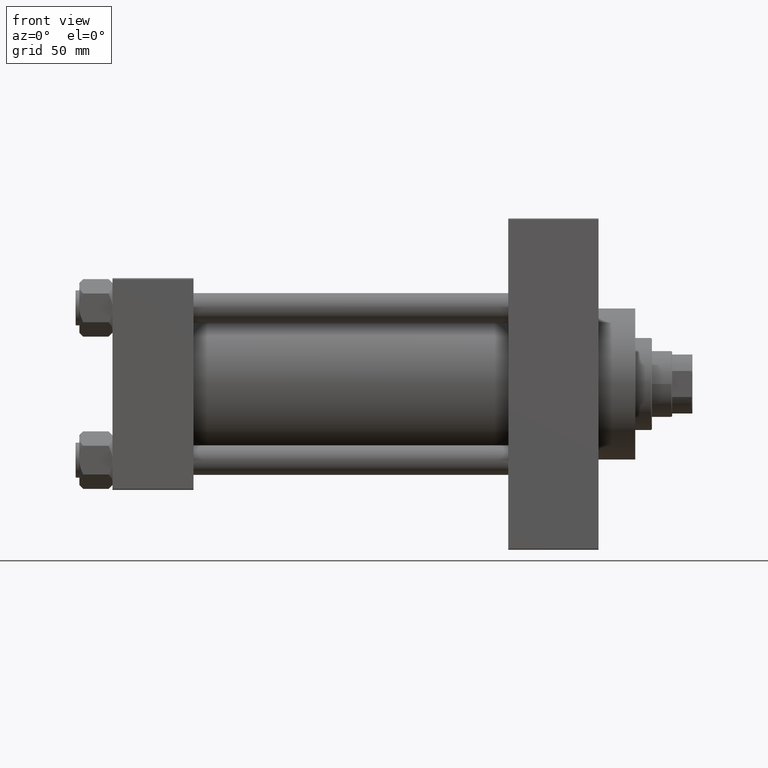
[diagram: clean part render]
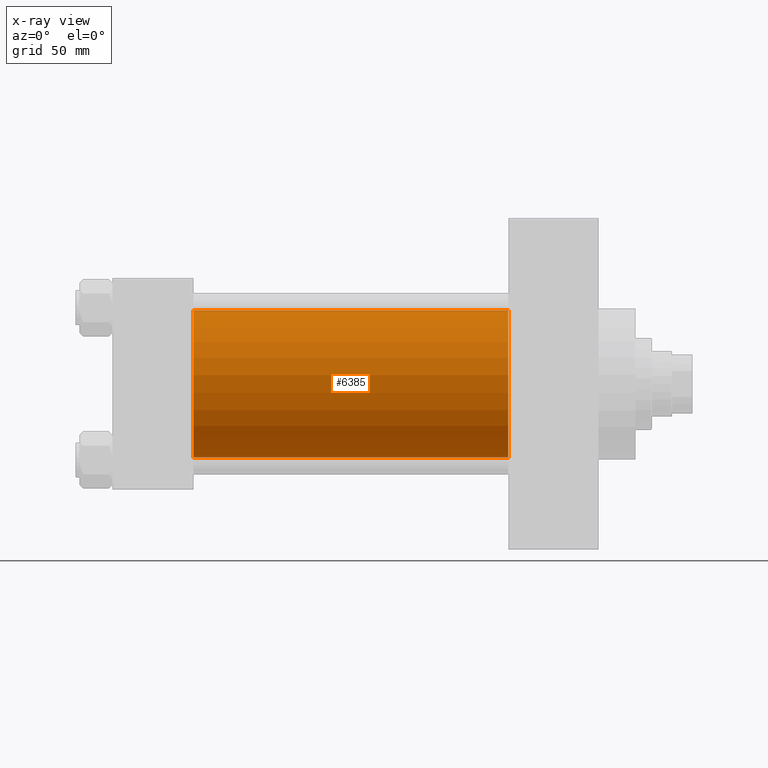
[diagram: x-ray — body ghosted, one internal face saturated and labeled with its STEP entity id]
A machine part, front view, then the same camera in x-ray: the body is ghosted and one INTERNAL B-rep face — a face not visible from any outside direction — is saturated and labeled: STEP entity #6385.
In plain terms, the highlighted cylindrical surface (partial cylindrical patch) has radius 40 mm, axis along (-1, -0, -0).
Its self-contained STEP definition (entity closure, byte-faithful):
#300 = CARTESIAN_POINT ( 'NONE',  ( 44.00000000000000000, -2.602085213965210642E-15, 0.000000000000000000 ) ) ;
#2640 = LINE ( 'NONE', #2879, #47484 ) ;
#2738 = ORIENTED_EDGE ( 'NONE', *, *, #25005, .F. ) ;
#2879 = CARTESIAN_POINT ( 'NONE',  ( 215.0000000000000284, -2.602085213965210642E-15, 40.00000000000000000 ) ) ;
#3118 = CARTESIAN_POINT ( 'NONE',  ( 215.0000000000000284, -2.602085213965210642E-15, 0.000000000000000000 ) ) ;
#4665 = LINE ( 'NONE', #37436, #11988 ) ;
#4714 = DIRECTION ( 'NONE',  ( 0.000000000000000000, 0.000000000000000000, -1.000000000000000000 ) ) ;
#6385 = ADVANCED_FACE ( 'NONE', ( #36131 ), #40218, .F. ) ;
#10268 = CARTESIAN_POINT ( 'NONE',  ( 215.0000000000000284, 2.296501982624201990E-15, -40.00000000000000000 ) ) ;
#11950 = DIRECTION ( 'NONE',  ( 1.000000000000000000, 0.000000000000000000, 0.000000000000000000 ) ) ;
#11988 = VECTOR ( 'NONE', #19363, 1000.000000000000000 ) ;
#14287 = EDGE_CURVE ( 'NONE', #16667, #42245, #17131, .T. ) ;
#15907 = CARTESIAN_POINT ( 'NONE',  ( 44.00000000000000000, -2.602085213965210642E-15, 40.00000000000000000 ) ) ;
#16044 = CARTESIAN_POINT ( 'NONE',  ( 215.0000000000000284, -2.602085213965210642E-15, 0.000000000000000000 ) ) ;
#16667 = VERTEX_POINT ( 'NONE', #15907 ) ;
#17131 = CIRCLE ( 'NONE', #44073, 40.00000000000000000 ) ;
#19363 = DIRECTION ( 'NONE',  ( -1.000000000000000000, -0.000000000000000000, -0.000000000000000000 ) ) ;
#21000 = ORIENTED_EDGE ( 'NONE', *, *, #21985, .T. ) ;
#21198 = DIRECTION ( 'NONE',  ( -1.000000000000000000, -0.000000000000000000, -0.000000000000000000 ) ) ;
#21985 = EDGE_CURVE ( 'NONE', #36929, #22125, #26590, .T. ) ;
#22125 = VERTEX_POINT ( 'NONE', #10268 ) ;
#25005 = EDGE_CURVE ( 'NONE', #36929, #16667, #2640, .T. ) ;
#26428 = EDGE_LOOP ( 'NONE', ( #21000, #34793, #46340, #2738 ) ) ;
#26590 = CIRCLE ( 'NONE', #28885, 40.00000000000000000 ) ;
#28191 = CARTESIAN_POINT ( 'NONE',  ( 44.00000000000000000, 2.296501982624201990E-15, -40.00000000000000000 ) ) ;
#28885 = AXIS2_PLACEMENT_3D ( 'NONE', #16044, #11950, #4714 ) ;
#34793 = ORIENTED_EDGE ( 'NONE', *, *, #41748, .T. ) ;
#36131 = FACE_OUTER_BOUND ( 'NONE', #26428, .T. ) ;
#36929 = VERTEX_POINT ( 'NONE', #38576 ) ;
#37387 = DIRECTION ( 'NONE',  ( 1.000000000000000000, 0.000000000000000000, 0.000000000000000000 ) ) ;
#37436 = CARTESIAN_POINT ( 'NONE',  ( 215.0000000000000284, 2.296501982624201990E-15, -40.00000000000000000 ) ) ;
#37979 = AXIS2_PLACEMENT_3D ( 'NONE', #3118, #21198, #39498 ) ;
#38542 = DIRECTION ( 'NONE',  ( -1.000000000000000000, -0.000000000000000000, -0.000000000000000000 ) ) ;
#38576 = CARTESIAN_POINT ( 'NONE',  ( 215.0000000000000284, -2.602085213965210642E-15, 40.00000000000000000 ) ) ;
#39498 = DIRECTION ( 'NONE',  ( 0.000000000000000000, 0.000000000000000000, 1.000000000000000000 ) ) ;
#40218 = CYLINDRICAL_SURFACE ( 'NONE', #37979, 40.00000000000000000 ) ;
#41748 = EDGE_CURVE ( 'NONE', #22125, #42245, #4665, .T. ) ;
#42245 = VERTEX_POINT ( 'NONE', #28191 ) ;
#44073 = AXIS2_PLACEMENT_3D ( 'NONE', #300, #37387, #44640 ) ;
#44640 = DIRECTION ( 'NONE',  ( 0.000000000000000000, 0.000000000000000000, -1.000000000000000000 ) ) ;
#46340 = ORIENTED_EDGE ( 'NONE', *, *, #14287, .F. ) ;
#47484 = VECTOR ( 'NONE', #38542, 1000.000000000000000 ) ;